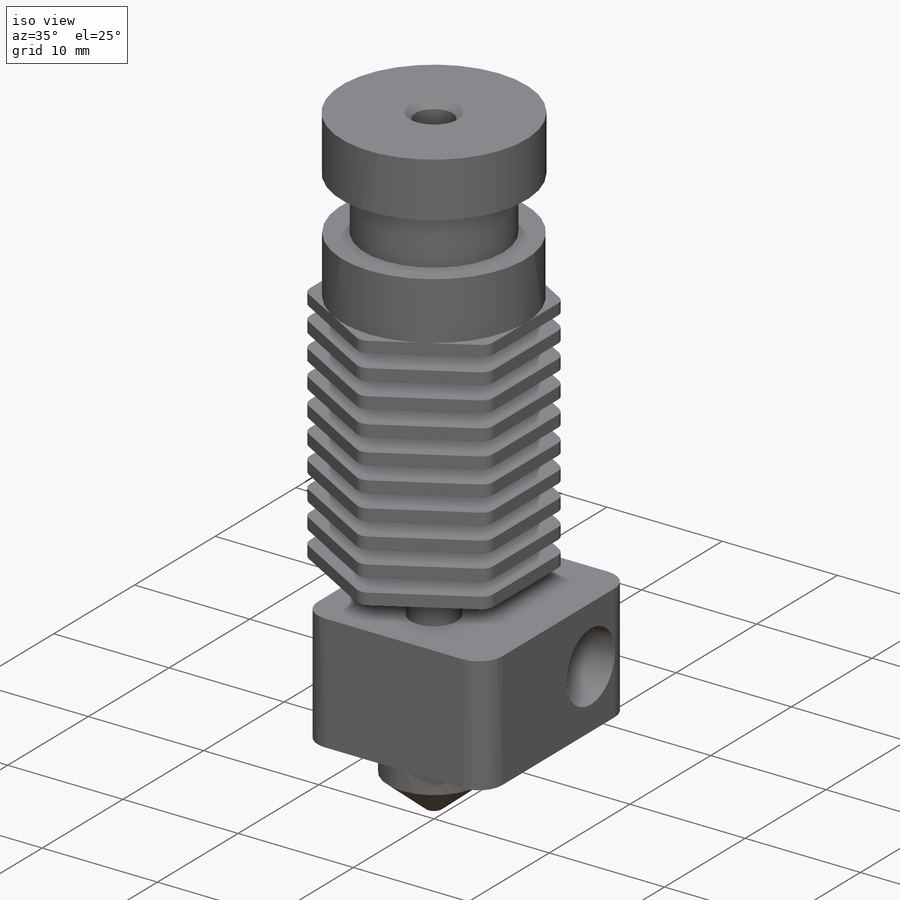
[diagram: iso view]
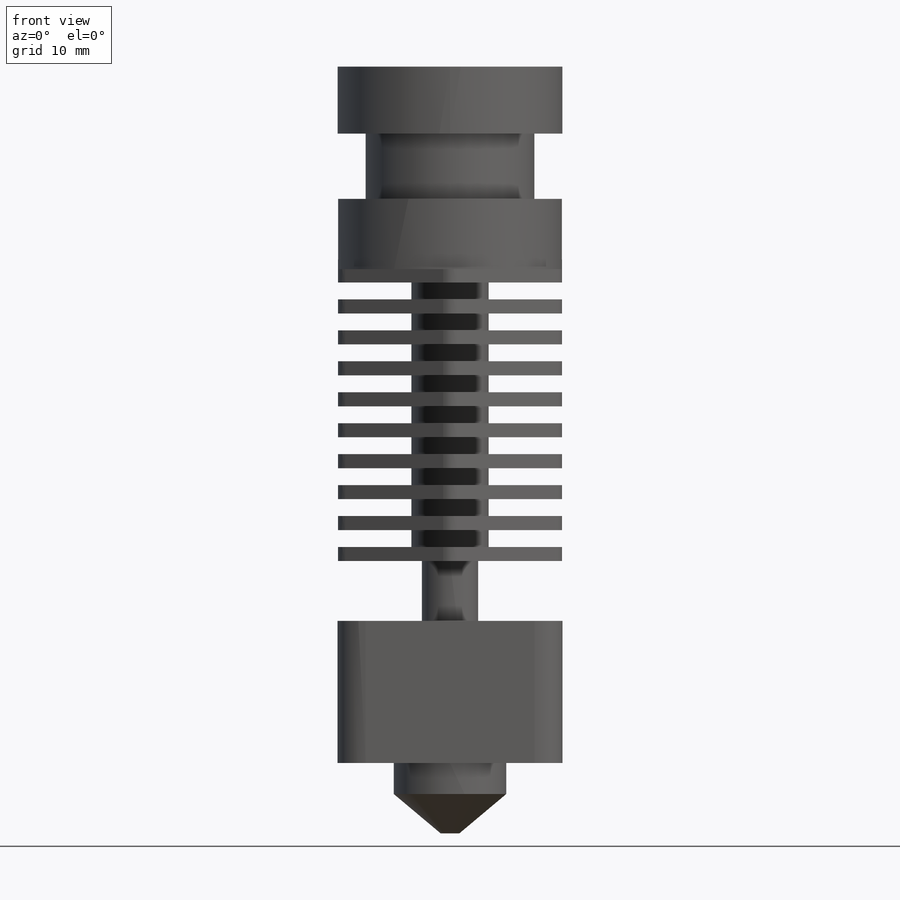
[diagram: front view]
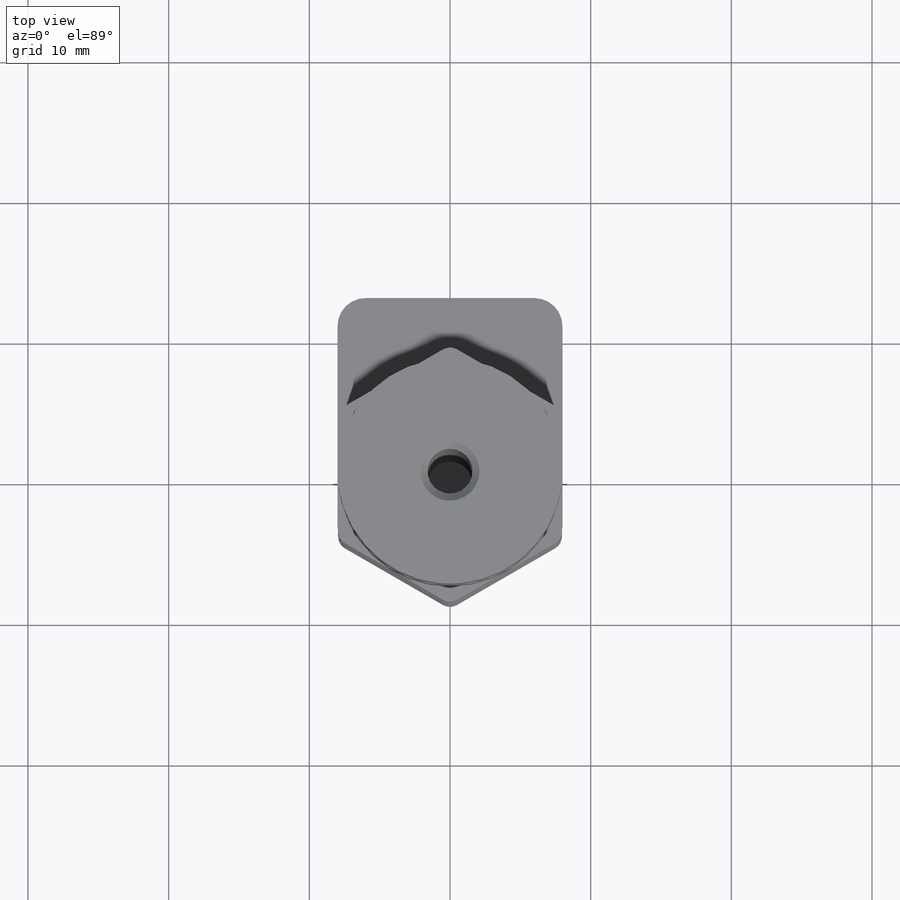
[diagram: top view]
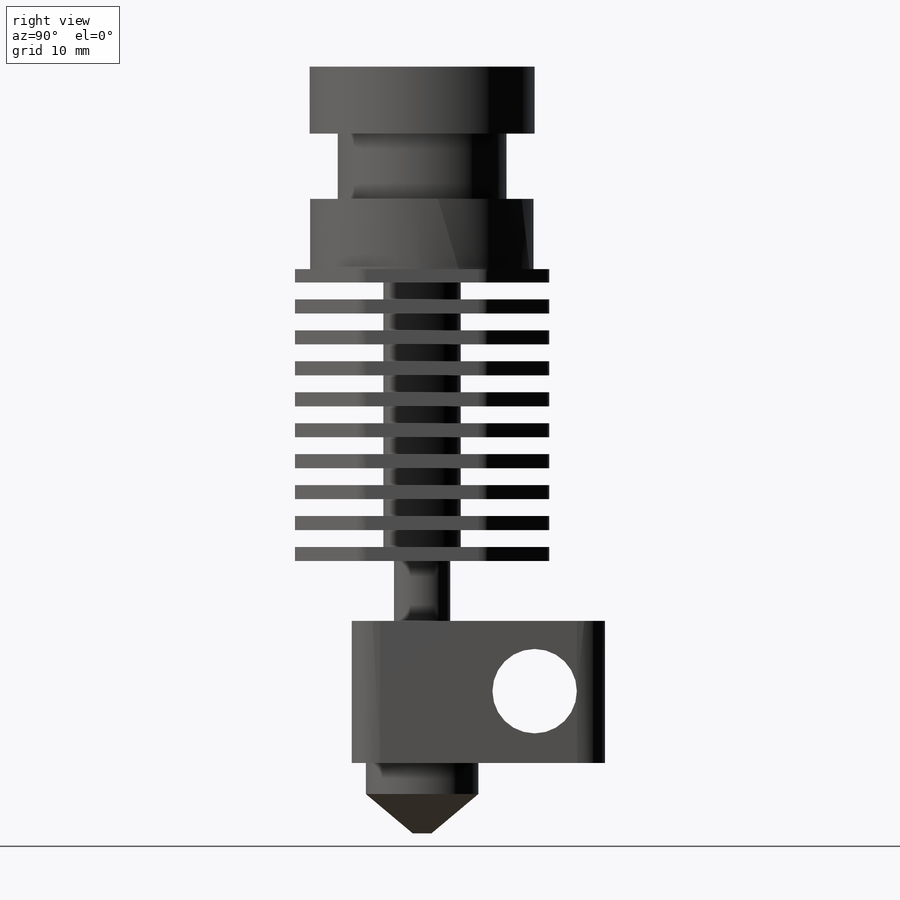
[diagram: right view]
SOLIDWORKS PART (.sldprt)
format: sldprt  version: not decoded by parser v0  size: 509,952 bytes
history: native  units: mm
features: sketch x10, extrude x6, cut_extrude x4, plane x2, chamfer x2, material x1, fillet x1, pattern_linear x1 (+12 scaffold rows collapsed)
feature tree (39):
  scaffold x12  (default folders/planes/origin — collapsed)
  material  "Material <not specified>"
  sketch  "Sketch1"  dims[D1=18.38mm]
  extrude  "Boss-Extrude1"  Depth=25.75mm
  sketch  "Sketch9"  dims[D1=12.0mm]
  extrude  "Boss-Extrude4"  Depth=4.64mm
  sketch  "Sketch10"  dims[D1=16.0mm]
  extrude  "Boss-Extrude5"  Depth=4.76mm
  sketch  "Sketch2"  dims[D1=4.0mm]
  extrude  "Boss-Extrude2"  Depth=30mm
  sketch  "Sketch4"  dims[c1.D4=2.0mm c1.D1=~16.244006mm c1.D2=~17.91763mm c2.D1=16.0mm c2.D2=18.0mm c2.D3=5.0mm]
  extrude  "Boss-Extrude3"  Depth=10.11mm
  fillet  "Fillet1"  Radius=1mm
  plane  "Plane2"
  plane  "Plane3"
  sketch  "Sketch5"  dims[D1=8.0mm]
  extrude  "Nozzle"  Depth=5mm
  chamfer  "Chamfer1"  Distance=2.8mm Angle=50deg
  sketch  "Sketch6"  dims[D2=5.5mm D1=0.0mm]
  cut_extrude  "Cut-Extrude1"  Depth=1.2mm
  pattern_linear  "LPattern1"  Count1=9 Count2=1 Spacing1=2.2mm Spacing2=10mm
  sketch  "Sketch7"  dims[c1.D1=~11.53645mm c1.D2=~15.917547mm c2.D1=0.0mm]
  cut_extrude  "Cut-Extrude2"  Depth=5mm
  sketch  "Sketch8"  dims[D1=3.2mm]
  cut_extrude  "Cut-Extrude3"  Depth=43mm
  chamfer  "Chamfer2"  Distance=0.5mm Angle=45deg
  sketch  "Sketch11"  dims[D1=6.0mm D2=5.0mm D3=5.0mm]
  cut_extrude  "Cut-Extrude4"  [1 undecoded]
decode coverage: 23 of 24 modeling features carry decoded parameters
note: ~ marks probable driven/reference dimensions
note: 1 parameter value undecoded
note: suppression state not decoded; provenance and decode notes live in map.json
